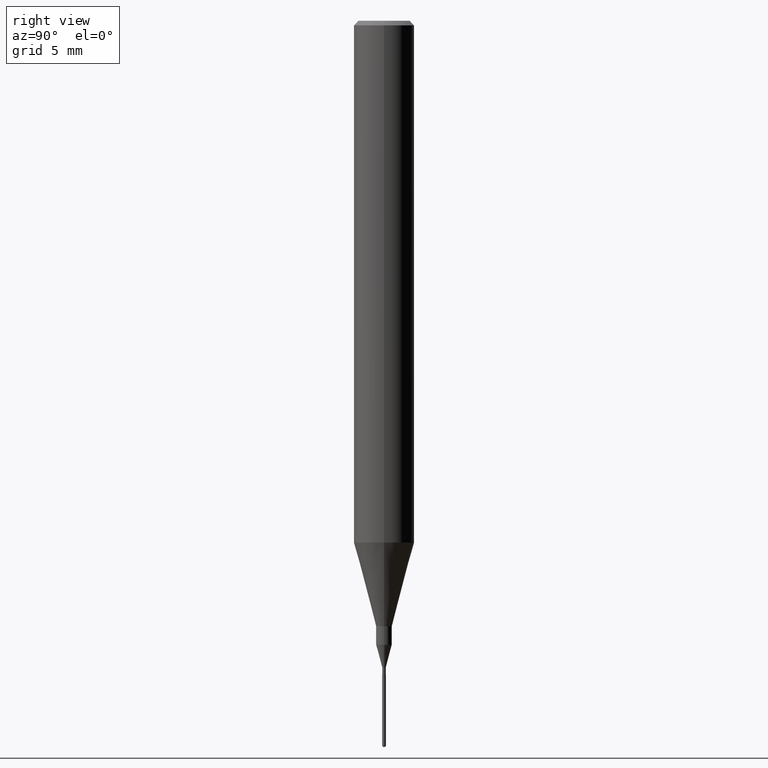
[diagram: clean part render]
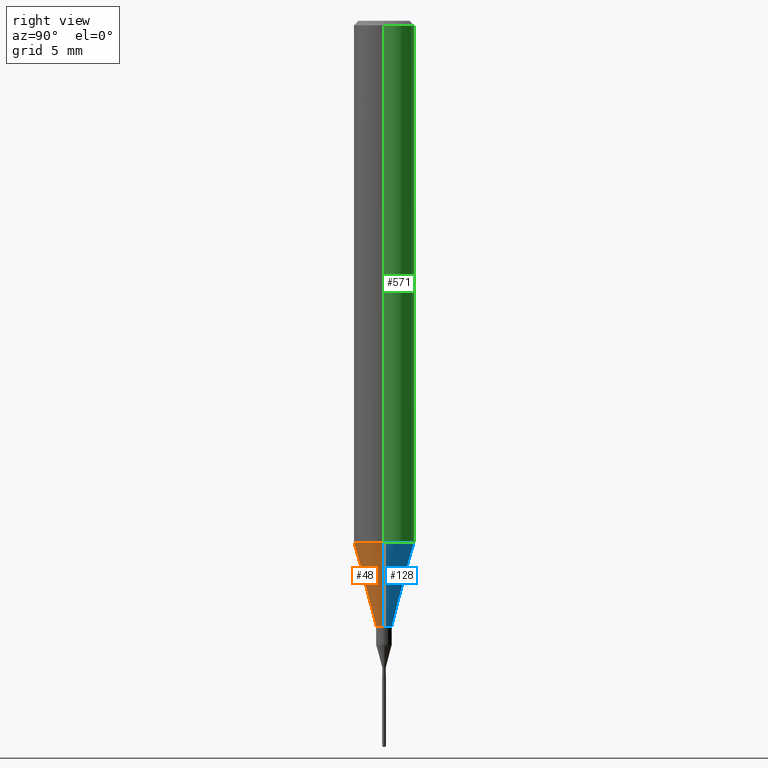
[diagram: same view with three faces highlighted in distinct colors, each labeled with its STEP entity id]
A machine part, right view with three faces highlighted in distinct colors.
Their STEP definitions:

[orange] entity #48 — the highlighted conical surface has half-angle 15 deg.
#30 = EDGE_CURVE ( 'NONE', #570, #311, #77, .T. ) ;
#39 = CARTESIAN_POINT ( 'NONE',  ( 0.06250000000000012490, -4.198131499960668153E-15, -1.077392650149939346 ) ) ;
#44 = CIRCLE ( 'NONE', #389, 0.01624999999999999709 ) ;
#48 = ADVANCED_FACE ( 'NONE', ( #327 ), #461, .T. ) ;
#56 = DIRECTION ( 'NONE',  ( 1.000000000000000000, -6.982962677686288799E-15, 0.000000000000000000 ) ) ;
#77 = LINE ( 'NONE', #124, #175 ) ;
#80 = DIRECTION ( 'NONE',  ( -0.2588190451025214611, 5.211531920934551042E-15, 0.9659258262890682012 ) ) ;
#124 = CARTESIAN_POINT ( 'NONE',  ( -0.06250000000000012490, -3.317607122755211895E-15, -1.077392650149939346 ) ) ;
#130 = ORIENTED_EDGE ( 'NONE', *, *, #199, .T. ) ;
#145 = LINE ( 'NONE', #337, #575 ) ;
#150 = EDGE_CURVE ( 'NONE', #311, #539, #316, .T. ) ;
#165 = EDGE_LOOP ( 'NONE', ( #255, #523, #130, #204 ) ) ;
#175 = VECTOR ( 'NONE', #80, 39.37007874015747433 ) ;
#199 = EDGE_CURVE ( 'NONE', #307, #539, #145, .T. ) ;
#204 = ORIENTED_EDGE ( 'NONE', *, *, #150, .F. ) ;
#207 = CARTESIAN_POINT ( 'NONE',  ( 2.634730117954813298E-29, -3.761696332605275695E-15, -1.077392650149939346 ) ) ;
#223 = CARTESIAN_POINT ( 'NONE',  ( -0.01624999999999999709, -4.315836524954742429E-15, -1.250000000000000000 ) ) ;
#255 = ORIENTED_EDGE ( 'NONE', *, *, #30, .F. ) ;
#295 = DIRECTION ( 'NONE',  ( 0.2588190451025214611, 1.565188264969621573E-15, 0.9659258262890682012 ) ) ;
#303 = CARTESIAN_POINT ( 'NONE',  ( 3.056836007731421306E-29, -4.364351673553932471E-15, -1.250000000000000000 ) ) ;
#307 = VERTEX_POINT ( 'NONE', #444 ) ;
#311 = VERTEX_POINT ( 'NONE', #521 ) ;
#316 = CIRCLE ( 'NONE', #411, 0.06250000000000012490 ) ;
#327 = FACE_OUTER_BOUND ( 'NONE', #165, .T. ) ;
#336 = EDGE_CURVE ( 'NONE', #570, #307, #44, .T. ) ;
#337 = CARTESIAN_POINT ( 'NONE',  ( 0.06250000000000012490, -4.198131499960668153E-15, -1.077392650149939346 ) ) ;
#369 = AXIS2_PLACEMENT_3D ( 'NONE', #485, #497, #462 ) ;
#389 = AXIS2_PLACEMENT_3D ( 'NONE', #303, #509, #56 ) ;
#391 = DIRECTION ( 'NONE',  ( -2.445468806185136597E-29, 3.491481338843145583E-15, 1.000000000000000000 ) ) ;
#411 = AXIS2_PLACEMENT_3D ( 'NONE', #207, #391, #522 ) ;
#444 = CARTESIAN_POINT ( 'NONE',  ( 0.01624999999999999709, -4.477824817066334148E-15, -1.250000000000000000 ) ) ;
#461 = CONICAL_SURFACE ( 'NONE', #369, 0.06250000000000012490, 0.2617993877991501295 ) ;
#462 = DIRECTION ( 'NONE',  ( 1.000000000000000000, -6.982962677686264344E-15, 0.000000000000000000 ) ) ;
#485 = CARTESIAN_POINT ( 'NONE',  ( 2.634730117954813298E-29, -3.761696332605275695E-15, -1.077392650149939346 ) ) ;
#497 = DIRECTION ( 'NONE',  ( -2.445468806185136597E-29, 3.491481338843145583E-15, 1.000000000000000000 ) ) ;
#509 = DIRECTION ( 'NONE',  ( -2.445468806185136597E-29, 3.491481338843145583E-15, 1.000000000000000000 ) ) ;
#521 = CARTESIAN_POINT ( 'NONE',  ( -0.06250000000000012490, -3.317607122755211895E-15, -1.077392650149939346 ) ) ;
#522 = DIRECTION ( 'NONE',  ( 1.000000000000000000, -6.982962677686264344E-15, 0.000000000000000000 ) ) ;
#523 = ORIENTED_EDGE ( 'NONE', *, *, #336, .T. ) ;
#539 = VERTEX_POINT ( 'NONE', #39 ) ;
#570 = VERTEX_POINT ( 'NONE', #223 ) ;
#575 = VECTOR ( 'NONE', #295, 39.37007874015747433 ) ;

[blue] entity #128 — the highlighted conical surface has half-angle 15 deg.
#3 = CIRCLE ( 'NONE', #135, 0.01624999999999999709 ) ;
#7 = CIRCLE ( 'NONE', #280, 0.06250000000000012490 ) ;
#12 = DIRECTION ( 'NONE',  ( -2.445468806185136597E-29, 3.491481338843145583E-15, 1.000000000000000000 ) ) ;
#30 = EDGE_CURVE ( 'NONE', #570, #311, #77, .T. ) ;
#33 = CONICAL_SURFACE ( 'NONE', #146, 0.06250000000000012490, 0.2617993877991501295 ) ;
#39 = CARTESIAN_POINT ( 'NONE',  ( 0.06250000000000012490, -4.198131499960668153E-15, -1.077392650149939346 ) ) ;
#77 = LINE ( 'NONE', #124, #175 ) ;
#80 = DIRECTION ( 'NONE',  ( -0.2588190451025214611, 5.211531920934551042E-15, 0.9659258262890682012 ) ) ;
#94 = CARTESIAN_POINT ( 'NONE',  ( 2.634730117954813298E-29, -3.761696332605275695E-15, -1.077392650149939346 ) ) ;
#98 = DIRECTION ( 'NONE',  ( -2.445468806185136597E-29, 3.491481338843145583E-15, 1.000000000000000000 ) ) ;
#99 = DIRECTION ( 'NONE',  ( 1.000000000000000000, -6.982962677686264344E-15, 0.000000000000000000 ) ) ;
#124 = CARTESIAN_POINT ( 'NONE',  ( -0.06250000000000012490, -3.317607122755211895E-15, -1.077392650149939346 ) ) ;
#128 = ADVANCED_FACE ( 'NONE', ( #503 ), #33, .T. ) ;
#135 = AXIS2_PLACEMENT_3D ( 'NONE', #555, #98, #333 ) ;
#145 = LINE ( 'NONE', #337, #575 ) ;
#146 = AXIS2_PLACEMENT_3D ( 'NONE', #375, #546, #99 ) ;
#163 = ORIENTED_EDGE ( 'NONE', *, *, #199, .F. ) ;
#175 = VECTOR ( 'NONE', #80, 39.37007874015747433 ) ;
#199 = EDGE_CURVE ( 'NONE', #307, #539, #145, .T. ) ;
#222 = EDGE_CURVE ( 'NONE', #307, #570, #3, .T. ) ;
#223 = CARTESIAN_POINT ( 'NONE',  ( -0.01624999999999999709, -4.315836524954742429E-15, -1.250000000000000000 ) ) ;
#280 = AXIS2_PLACEMENT_3D ( 'NONE', #94, #12, #290 ) ;
#290 = DIRECTION ( 'NONE',  ( 1.000000000000000000, -6.982962677686264344E-15, 0.000000000000000000 ) ) ;
#295 = DIRECTION ( 'NONE',  ( 0.2588190451025214611, 1.565188264969621573E-15, 0.9659258262890682012 ) ) ;
#307 = VERTEX_POINT ( 'NONE', #444 ) ;
#311 = VERTEX_POINT ( 'NONE', #521 ) ;
#315 = ORIENTED_EDGE ( 'NONE', *, *, #387, .F. ) ;
#323 = ORIENTED_EDGE ( 'NONE', *, *, #30, .T. ) ;
#333 = DIRECTION ( 'NONE',  ( 1.000000000000000000, -6.982962677686288799E-15, 0.000000000000000000 ) ) ;
#337 = CARTESIAN_POINT ( 'NONE',  ( 0.06250000000000012490, -4.198131499960668153E-15, -1.077392650149939346 ) ) ;
#358 = ORIENTED_EDGE ( 'NONE', *, *, #222, .T. ) ;
#375 = CARTESIAN_POINT ( 'NONE',  ( 2.634730117954813298E-29, -3.761696332605275695E-15, -1.077392650149939346 ) ) ;
#387 = EDGE_CURVE ( 'NONE', #539, #311, #7, .T. ) ;
#444 = CARTESIAN_POINT ( 'NONE',  ( 0.01624999999999999709, -4.477824817066334148E-15, -1.250000000000000000 ) ) ;
#503 = FACE_OUTER_BOUND ( 'NONE', #578, .T. ) ;
#521 = CARTESIAN_POINT ( 'NONE',  ( -0.06250000000000012490, -3.317607122755211895E-15, -1.077392650149939346 ) ) ;
#539 = VERTEX_POINT ( 'NONE', #39 ) ;
#546 = DIRECTION ( 'NONE',  ( -2.445468806185136597E-29, 3.491481338843145583E-15, 1.000000000000000000 ) ) ;
#555 = CARTESIAN_POINT ( 'NONE',  ( 3.056836007731421306E-29, -4.364351673553932471E-15, -1.250000000000000000 ) ) ;
#570 = VERTEX_POINT ( 'NONE', #223 ) ;
#575 = VECTOR ( 'NONE', #295, 39.37007874015747433 ) ;
#578 = EDGE_LOOP ( 'NONE', ( #358, #323, #315, #163 ) ) ;

[green] entity #571 — the highlighted cylindrical surface (edge-blend (fillet) strip) has radius 1.5875 mm, axis along (-0, 0, 1).
#7 = CIRCLE ( 'NONE', #280, 0.06250000000000012490 ) ;
#12 = DIRECTION ( 'NONE',  ( -2.445468806185136597E-29, 3.491481338843145583E-15, 1.000000000000000000 ) ) ;
#13 = ORIENTED_EDGE ( 'NONE', *, *, #264, .F. ) ;
#36 = VERTEX_POINT ( 'NONE', #538 ) ;
#39 = CARTESIAN_POINT ( 'NONE',  ( 0.06250000000000012490, -4.198131499960668153E-15, -1.077392650149939346 ) ) ;
#73 = EDGE_CURVE ( 'NONE', #539, #88, #292, .T. ) ;
#75 = CYLINDRICAL_SURFACE ( 'NONE', #113, 0.06250000000000006939 ) ;
#88 = VERTEX_POINT ( 'NONE', #379 ) ;
#89 = ORIENTED_EDGE ( 'NONE', *, *, #73, .F. ) ;
#91 = DIRECTION ( 'NONE',  ( -2.445468806185136877E-29, 3.491481338843145188E-15, 1.000000000000000000 ) ) ;
#94 = CARTESIAN_POINT ( 'NONE',  ( 2.634730117954813298E-29, -3.761696332605275695E-15, -1.077392650149939346 ) ) ;
#113 = AXIS2_PLACEMENT_3D ( 'NONE', #119, #317, #271 ) ;
#119 = CARTESIAN_POINT ( 'NONE',  ( 0.000000000000000000, 0.000000000000000000, 0.000000000000000000 ) ) ;
#125 = CARTESIAN_POINT ( 'NONE',  ( -0.06250000000000006939, 4.440892098500631092E-16, -3.074334431409319267E-30 ) ) ;
#141 = CARTESIAN_POINT ( 'NONE',  ( 0.06250000000000006939, -4.364351673553921624E-16, 3.047610484872463374E-30 ) ) ;
#170 = FACE_OUTER_BOUND ( 'NONE', #481, .T. ) ;
#177 = VECTOR ( 'NONE', #91, 39.37007874015748143 ) ;
#228 = LINE ( 'NONE', #125, #454 ) ;
#252 = EDGE_CURVE ( 'NONE', #311, #36, #228, .T. ) ;
#264 = EDGE_CURVE ( 'NONE', #88, #36, #541, .T. ) ;
#271 = DIRECTION ( 'NONE',  ( 1.000000000000000000, -6.982962677686266711E-15, 4.876176775795935793E-29 ) ) ;
#280 = AXIS2_PLACEMENT_3D ( 'NONE', #94, #12, #290 ) ;
#290 = DIRECTION ( 'NONE',  ( 1.000000000000000000, -6.982962677686264344E-15, 0.000000000000000000 ) ) ;
#292 = LINE ( 'NONE', #141, #177 ) ;
#297 = AXIS2_PLACEMENT_3D ( 'NONE', #446, #324, #482 ) ;
#311 = VERTEX_POINT ( 'NONE', #521 ) ;
#317 = DIRECTION ( 'NONE',  ( -2.445468806185136597E-29, 3.491481338843145583E-15, 1.000000000000000000 ) ) ;
#324 = DIRECTION ( 'NONE',  ( -2.445468806185136597E-29, 3.491481338843145583E-15, 1.000000000000000000 ) ) ;
#379 = CARTESIAN_POINT ( 'NONE',  ( 0.06250000000000000000, -4.691678049070464390E-16, -0.009375000000000067307 ) ) ;
#387 = EDGE_CURVE ( 'NONE', #539, #311, #7, .T. ) ;
#388 = ORIENTED_EDGE ( 'NONE', *, *, #252, .T. ) ;
#446 = CARTESIAN_POINT ( 'NONE',  ( 2.292627005798582375E-31, -3.273263755165472650E-17, -0.009375000000000067307 ) ) ;
#454 = VECTOR ( 'NONE', #489, 39.37007874015748143 ) ;
#481 = EDGE_LOOP ( 'NONE', ( #589, #388, #13, #89 ) ) ;
#482 = DIRECTION ( 'NONE',  ( 1.000000000000000000, -6.982962677686266711E-15, 0.000000000000000000 ) ) ;
#489 = DIRECTION ( 'NONE',  ( -2.445468806185136877E-29, 3.491481338843145188E-15, 1.000000000000000000 ) ) ;
#521 = CARTESIAN_POINT ( 'NONE',  ( -0.06250000000000012490, -3.317607122755211895E-15, -1.077392650149939346 ) ) ;
#538 = CARTESIAN_POINT ( 'NONE',  ( -0.06250000000000000000, -1.453125275228401137E-15, -0.009375000000000067307 ) ) ;
#539 = VERTEX_POINT ( 'NONE', #39 ) ;
#541 = CIRCLE ( 'NONE', #297, 0.06250000000000000000 ) ;
#571 = ADVANCED_FACE ( 'NONE', ( #170 ), #75, .T. ) ;
#589 = ORIENTED_EDGE ( 'NONE', *, *, #387, .T. ) ;